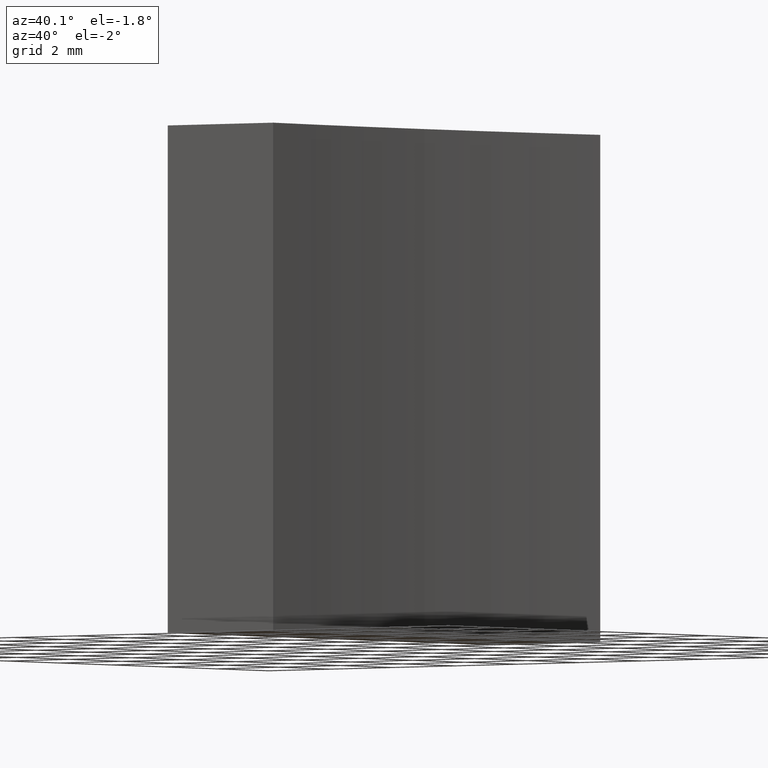
[diagram: clean part render]
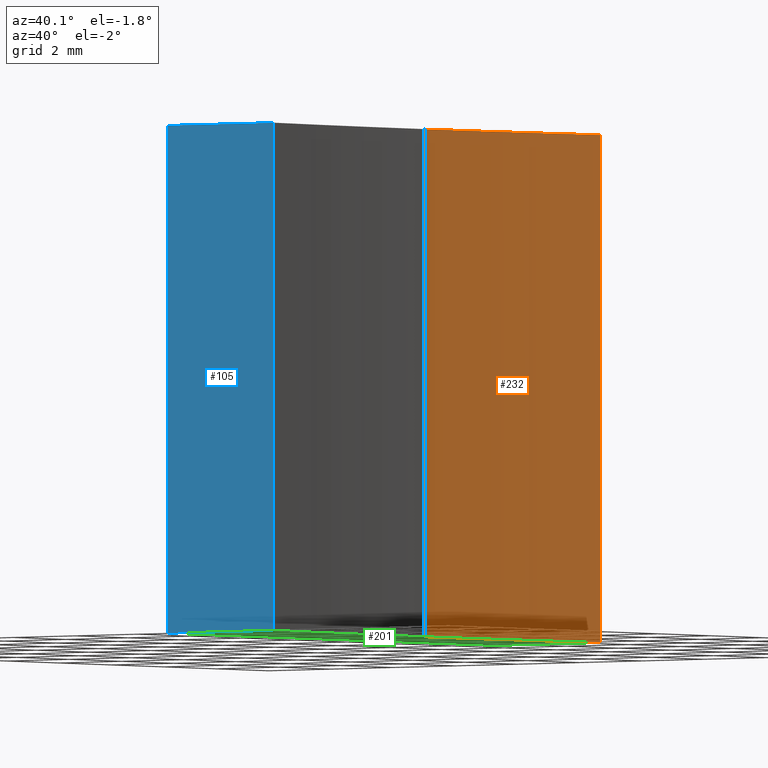
[diagram: same view with three faces highlighted in distinct colors, each labeled with its STEP entity id]
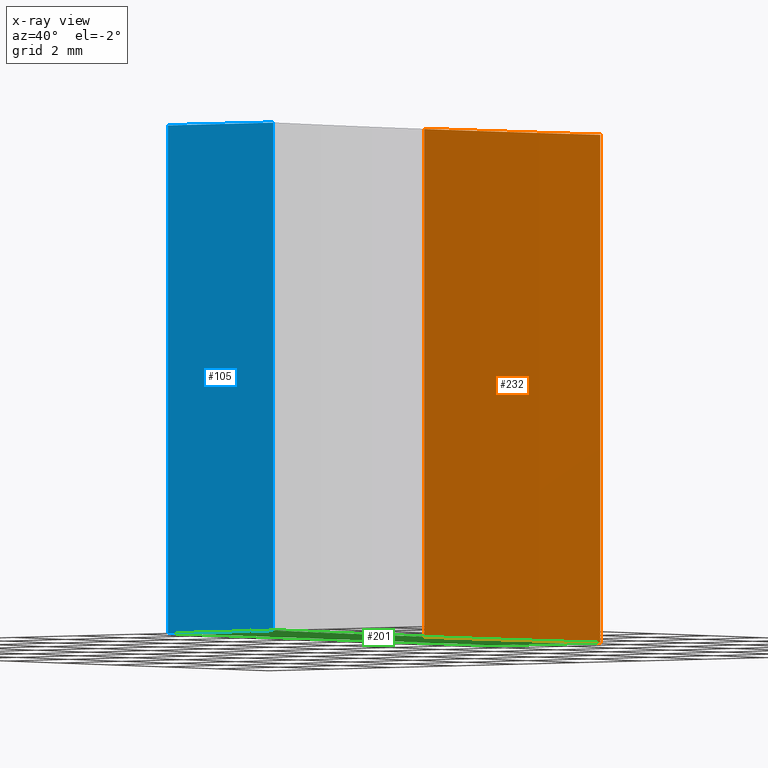
[diagram: x-ray of the same camera — body ghosted, the three highlighted faces saturated]
A machine part, auxiliary view with three faces highlighted in distinct colors.
The next image is the same camera in x-ray (body ghosted, the three faces saturated) — at least one of them is partly hidden behind the body in this view.
Their STEP definitions:

[orange] entity #232 — the highlighted cylindrical surface (partial cylindrical patch) has radius 50 mm, axis along (-0, -0, -1).
#7 = ORIENTED_EDGE ( 'NONE', *, *, #136, .F. ) ;
#8 = CIRCLE ( 'NONE', #95, 49.99999999999998600 ) ;
#11 = ORIENTED_EDGE ( 'NONE', *, *, #191, .T. ) ;
#14 = CARTESIAN_POINT ( 'NONE',  ( 60.93849051950596200, 40.93901056168622400, 12.50000000000000000 ) ) ;
#19 = AXIS2_PLACEMENT_3D ( 'NONE', #68, #20, #163 ) ;
#20 = DIRECTION ( 'NONE',  ( -0.0000000000000000000, -0.0000000000000000000, -1.000000000000000000 ) ) ;
#22 = VERTEX_POINT ( 'NONE', #175 ) ;
#37 = DIRECTION ( 'NONE',  ( -0.0000000000000000000, -0.0000000000000000000, -1.000000000000000000 ) ) ;
#49 = CARTESIAN_POINT ( 'NONE',  ( 60.54632760196703600, 34.68901056168623100, 0.0000000000000000000 ) ) ;
#64 = DIRECTION ( 'NONE',  ( 1.000000000000000000, 0.0000000000000000000, 0.0000000000000000000 ) ) ;
#68 = CARTESIAN_POINT ( 'NONE',  ( 110.5463276019670400, 34.68901056168623100, 0.0000000000000000000 ) ) ;
#77 = EDGE_CURVE ( 'NONE', #92, #181, #8, .T. ) ;
#85 = CARTESIAN_POINT ( 'NONE',  ( 110.5463276019670400, 34.68901056168623100, 12.50000000000000000 ) ) ;
#86 = LINE ( 'NONE', #139, #228 ) ;
#92 = VERTEX_POINT ( 'NONE', #120 ) ;
#95 = AXIS2_PLACEMENT_3D ( 'NONE', #85, #159, #64 ) ;
#106 = CYLINDRICAL_SURFACE ( 'NONE', #140, 49.99999999999999300 ) ;
#114 = EDGE_LOOP ( 'NONE', ( #165, #11, #173, #7 ) ) ;
#119 = CARTESIAN_POINT ( 'NONE',  ( 60.93849051950596200, 40.93901056168622400, 12.50000000000000000 ) ) ;
#120 = CARTESIAN_POINT ( 'NONE',  ( 60.54632760196703600, 34.68901056168623100, 12.50000000000000000 ) ) ;
#122 = EDGE_CURVE ( 'NONE', #161, #22, #208, .T. ) ;
#136 = EDGE_CURVE ( 'NONE', #181, #22, #214, .T. ) ;
#139 = CARTESIAN_POINT ( 'NONE',  ( 60.54632760196703600, 34.68901056168623100, 12.50000000000000000 ) ) ;
#140 = AXIS2_PLACEMENT_3D ( 'NONE', #220, #204, #144 ) ;
#144 = DIRECTION ( 'NONE',  ( -1.000000000000000000, 0.0000000000000000000, 0.0000000000000000000 ) ) ;
#159 = DIRECTION ( 'NONE',  ( -0.0000000000000000000, -0.0000000000000000000, -1.000000000000000000 ) ) ;
#161 = VERTEX_POINT ( 'NONE', #49 ) ;
#163 = DIRECTION ( 'NONE',  ( 1.000000000000000000, 0.0000000000000000000, 0.0000000000000000000 ) ) ;
#165 = ORIENTED_EDGE ( 'NONE', *, *, #77, .F. ) ;
#173 = ORIENTED_EDGE ( 'NONE', *, *, #122, .T. ) ;
#175 = CARTESIAN_POINT ( 'NONE',  ( 60.93849051950596200, 40.93901056168622400, 0.0000000000000000000 ) ) ;
#176 = FACE_OUTER_BOUND ( 'NONE', #114, .T. ) ;
#181 = VERTEX_POINT ( 'NONE', #14 ) ;
#189 = VECTOR ( 'NONE', #37, 1000.000000000000000 ) ;
#191 = EDGE_CURVE ( 'NONE', #92, #161, #86, .T. ) ;
#197 = DIRECTION ( 'NONE',  ( -0.0000000000000000000, -0.0000000000000000000, -1.000000000000000000 ) ) ;
#204 = DIRECTION ( 'NONE',  ( -0.0000000000000000000, -0.0000000000000000000, -1.000000000000000000 ) ) ;
#208 = CIRCLE ( 'NONE', #19, 49.99999999999998600 ) ;
#214 = LINE ( 'NONE', #119, #189 ) ;
#220 = CARTESIAN_POINT ( 'NONE',  ( 110.5463276019670400, 34.68901056168623100, 12.50000000000000000 ) ) ;
#228 = VECTOR ( 'NONE', #197, 1000.000000000000000 ) ;
#232 = ADVANCED_FACE ( 'NONE', ( #176 ), #106, .F. ) ;

[blue] entity #105 — the highlighted planar face has unit normal (-0, 1, 0).
#17 = VECTOR ( 'NONE', #94, 1000.000000000000000 ) ;
#30 = VERTEX_POINT ( 'NONE', #174 ) ;
#31 = EDGE_CURVE ( 'NONE', #30, #111, #107, .T. ) ;
#36 = CARTESIAN_POINT ( 'NONE',  ( 57.54632776745975800, 28.43901056168622100, 12.50000000000000000 ) ) ;
#46 = VECTOR ( 'NONE', #177, 1000.000000000000000 ) ;
#55 = CARTESIAN_POINT ( 'NONE',  ( 57.54632776745975800, 28.43901056168622100, 12.50000000000000000 ) ) ;
#63 = ORIENTED_EDGE ( 'NONE', *, *, #178, .T. ) ;
#66 = LINE ( 'NONE', #116, #160 ) ;
#67 = ORIENTED_EDGE ( 'NONE', *, *, #31, .F. ) ;
#70 = ORIENTED_EDGE ( 'NONE', *, *, #180, .T. ) ;
#80 = VECTOR ( 'NONE', #215, 1000.000000000000000 ) ;
#81 = AXIS2_PLACEMENT_3D ( 'NONE', #55, #84, #162 ) ;
#82 = CARTESIAN_POINT ( 'NONE',  ( 60.93849051950595500, 28.43901056168625600, 12.50000000000000000 ) ) ;
#83 = CARTESIAN_POINT ( 'NONE',  ( 60.93849051950595500, 28.43901056168625600, 0.0000000000000000000 ) ) ;
#84 = DIRECTION ( 'NONE',  ( -5.113915819429341200E-015, 1.000000000000000000, 0.0000000000000000000 ) ) ;
#87 = ORIENTED_EDGE ( 'NONE', *, *, #193, .F. ) ;
#94 = DIRECTION ( 'NONE',  ( 1.000000000000000000, 5.113915819429341200E-015, 0.0000000000000000000 ) ) ;
#96 = CARTESIAN_POINT ( 'NONE',  ( 57.54632776745975800, 28.43901056168622100, 12.50000000000000000 ) ) ;
#101 = CARTESIAN_POINT ( 'NONE',  ( 60.93849051950595500, 28.43901056168625600, 12.50000000000000000 ) ) ;
#105 = ADVANCED_FACE ( 'NONE', ( #192 ), #200, .F. ) ;
#107 = LINE ( 'NONE', #96, #17 ) ;
#111 = VERTEX_POINT ( 'NONE', #101 ) ;
#116 = CARTESIAN_POINT ( 'NONE',  ( 57.54632776745975800, 28.43901056168622100, 0.0000000000000000000 ) ) ;
#128 = LINE ( 'NONE', #82, #80 ) ;
#133 = LINE ( 'NONE', #36, #46 ) ;
#138 = DIRECTION ( 'NONE',  ( 1.000000000000000000, 5.113915819429341200E-015, 0.0000000000000000000 ) ) ;
#150 = VERTEX_POINT ( 'NONE', #182 ) ;
#160 = VECTOR ( 'NONE', #138, 1000.000000000000000 ) ;
#162 = DIRECTION ( 'NONE',  ( -1.000000000000000000, -5.113915819429341200E-015, 0.0000000000000000000 ) ) ;
#174 = CARTESIAN_POINT ( 'NONE',  ( 57.54632776745975800, 28.43901056168622100, 12.50000000000000000 ) ) ;
#177 = DIRECTION ( 'NONE',  ( -0.0000000000000000000, -0.0000000000000000000, -1.000000000000000000 ) ) ;
#178 = EDGE_CURVE ( 'NONE', #30, #150, #133, .T. ) ;
#180 = EDGE_CURVE ( 'NONE', #150, #199, #66, .T. ) ;
#182 = CARTESIAN_POINT ( 'NONE',  ( 57.54632776745975800, 28.43901056168622100, 0.0000000000000000000 ) ) ;
#192 = FACE_OUTER_BOUND ( 'NONE', #196, .T. ) ;
#193 = EDGE_CURVE ( 'NONE', #111, #199, #128, .T. ) ;
#196 = EDGE_LOOP ( 'NONE', ( #70, #87, #67, #63 ) ) ;
#199 = VERTEX_POINT ( 'NONE', #83 ) ;
#200 = PLANE ( 'NONE',  #81 ) ;
#215 = DIRECTION ( 'NONE',  ( -0.0000000000000000000, -0.0000000000000000000, -1.000000000000000000 ) ) ;

[green] entity #201 — the highlighted planar face has unit normal (0, 0, 1).
#4 = VECTOR ( 'NONE', #154, 1000.000000000000000 ) ;
#9 = EDGE_LOOP ( 'NONE', ( #134, #156, #152, #59, #146 ) ) ;
#19 = AXIS2_PLACEMENT_3D ( 'NONE', #68, #20, #163 ) ;
#20 = DIRECTION ( 'NONE',  ( -0.0000000000000000000, -0.0000000000000000000, -1.000000000000000000 ) ) ;
#22 = VERTEX_POINT ( 'NONE', #175 ) ;
#26 = VECTOR ( 'NONE', #233, 1000.000000000000000 ) ;
#29 = CARTESIAN_POINT ( 'NONE',  ( 57.54632776745975800, 40.93901056168621700, 0.0000000000000000000 ) ) ;
#32 = EDGE_CURVE ( 'NONE', #199, #161, #126, .T. ) ;
#35 = CARTESIAN_POINT ( 'NONE',  ( 110.5463276019670400, 34.68901056168623100, 0.0000000000000000000 ) ) ;
#45 = DIRECTION ( 'NONE',  ( 1.000000000000000000, 0.0000000000000000000, 0.0000000000000000000 ) ) ;
#48 = DIRECTION ( 'NONE',  ( -0.0000000000000000000, -0.0000000000000000000, -1.000000000000000000 ) ) ;
#49 = CARTESIAN_POINT ( 'NONE',  ( 60.54632760196703600, 34.68901056168623100, 0.0000000000000000000 ) ) ;
#59 = ORIENTED_EDGE ( 'NONE', *, *, #122, .F. ) ;
#65 = EDGE_CURVE ( 'NONE', #22, #123, #121, .T. ) ;
#66 = LINE ( 'NONE', #116, #160 ) ;
#68 = CARTESIAN_POINT ( 'NONE',  ( 110.5463276019670400, 34.68901056168623100, 0.0000000000000000000 ) ) ;
#73 = DIRECTION ( 'NONE',  ( 1.000000000000000000, 0.0000000000000000000, -0.0000000000000000000 ) ) ;
#83 = CARTESIAN_POINT ( 'NONE',  ( 60.93849051950595500, 28.43901056168625600, 0.0000000000000000000 ) ) ;
#116 = CARTESIAN_POINT ( 'NONE',  ( 57.54632776745975800, 28.43901056168622100, 0.0000000000000000000 ) ) ;
#121 = LINE ( 'NONE', #29, #4 ) ;
#122 = EDGE_CURVE ( 'NONE', #161, #22, #208, .T. ) ;
#123 = VERTEX_POINT ( 'NONE', #216 ) ;
#124 = DIRECTION ( 'NONE',  ( 0.0000000000000000000, 0.0000000000000000000, 1.000000000000000000 ) ) ;
#126 = CIRCLE ( 'NONE', #226, 49.99999999999998600 ) ;
#130 = FACE_OUTER_BOUND ( 'NONE', #9, .T. ) ;
#134 = ORIENTED_EDGE ( 'NONE', *, *, #180, .F. ) ;
#135 = AXIS2_PLACEMENT_3D ( 'NONE', #35, #124, #73 ) ;
#138 = DIRECTION ( 'NONE',  ( 1.000000000000000000, 5.113915819429341200E-015, 0.0000000000000000000 ) ) ;
#141 = CARTESIAN_POINT ( 'NONE',  ( 57.54632776745975800, 34.68901056168621700, 0.0000000000000000000 ) ) ;
#146 = ORIENTED_EDGE ( 'NONE', *, *, #32, .F. ) ;
#150 = VERTEX_POINT ( 'NONE', #182 ) ;
#152 = ORIENTED_EDGE ( 'NONE', *, *, #65, .F. ) ;
#154 = DIRECTION ( 'NONE',  ( -1.000000000000000000, -2.045566327771736600E-015, -0.0000000000000000000 ) ) ;
#156 = ORIENTED_EDGE ( 'NONE', *, *, #158, .F. ) ;
#157 = CARTESIAN_POINT ( 'NONE',  ( 110.5463276019670400, 34.68901056168623100, 0.0000000000000000000 ) ) ;
#158 = EDGE_CURVE ( 'NONE', #123, #150, #168, .T. ) ;
#160 = VECTOR ( 'NONE', #138, 1000.000000000000000 ) ;
#161 = VERTEX_POINT ( 'NONE', #49 ) ;
#163 = DIRECTION ( 'NONE',  ( 1.000000000000000000, 0.0000000000000000000, 0.0000000000000000000 ) ) ;
#168 = LINE ( 'NONE', #141, #26 ) ;
#175 = CARTESIAN_POINT ( 'NONE',  ( 60.93849051950596200, 40.93901056168622400, 0.0000000000000000000 ) ) ;
#180 = EDGE_CURVE ( 'NONE', #150, #199, #66, .T. ) ;
#182 = CARTESIAN_POINT ( 'NONE',  ( 57.54632776745975800, 28.43901056168622100, 0.0000000000000000000 ) ) ;
#199 = VERTEX_POINT ( 'NONE', #83 ) ;
#201 = ADVANCED_FACE ( 'NONE', ( #130 ), #231, .F. ) ;
#208 = CIRCLE ( 'NONE', #19, 49.99999999999998600 ) ;
#216 = CARTESIAN_POINT ( 'NONE',  ( 57.54632776745975800, 40.93901056168621700, 0.0000000000000000000 ) ) ;
#226 = AXIS2_PLACEMENT_3D ( 'NONE', #157, #48, #45 ) ;
#231 = PLANE ( 'NONE',  #135 ) ;
#233 = DIRECTION ( 'NONE',  ( -0.0000000000000000000, -1.000000000000000000, -0.0000000000000000000 ) ) ;